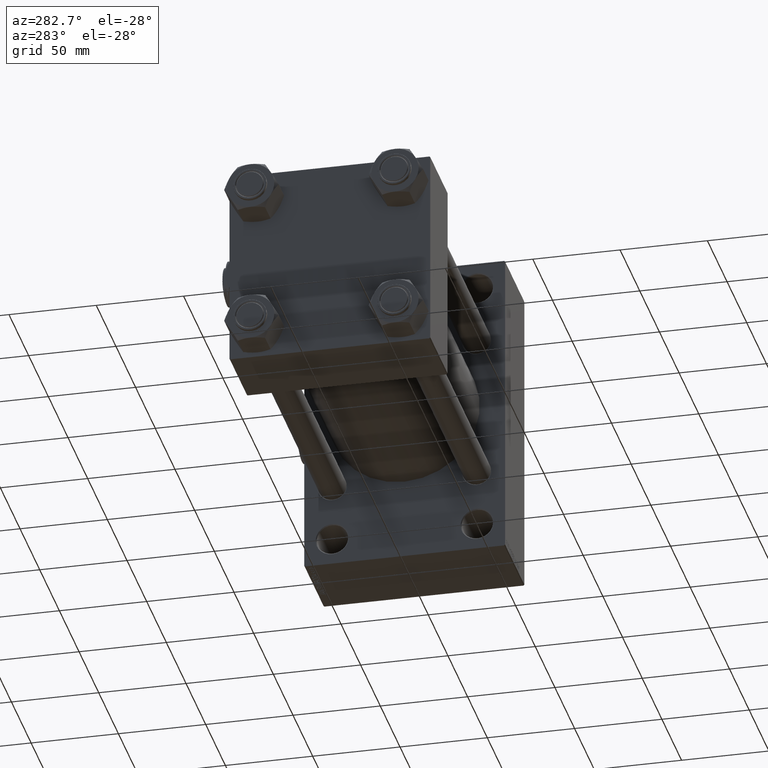
[diagram: clean part render]
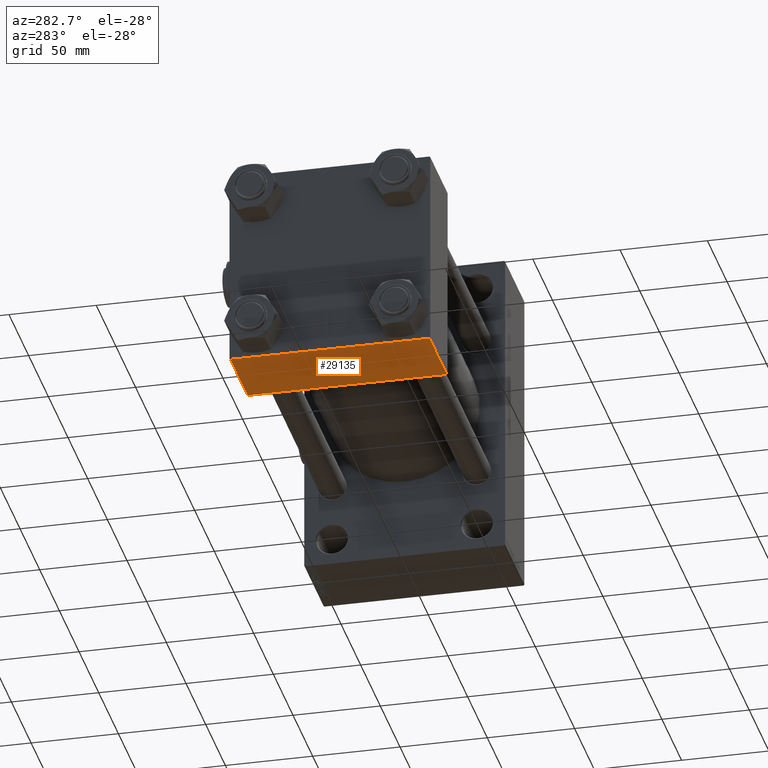
[diagram: same view with one face highlighted and labeled with its STEP entity id]
A machine part, auxiliary view. The second image highlights one B-rep face of the part: STEP entity #29135.
In plain terms, the highlighted planar face has unit normal (0, 0, -1).
Its self-contained STEP definition (entity closure, byte-faithful):
#957 = CARTESIAN_POINT ( 'NONE',  ( 0.000000000000000000, 57.00000000000002132, -57.49999999999999289 ) ) ;
#2847 = DIRECTION ( 'NONE',  ( 1.000000000000000000, 0.000000000000000000, 0.000000000000000000 ) ) ;
#4053 = VERTEX_POINT ( 'NONE', #15774 ) ;
#4736 = AXIS2_PLACEMENT_3D ( 'NONE', #38107, #6828, #22350 ) ;
#5353 = CARTESIAN_POINT ( 'NONE',  ( 44.00000000000000000, -57.00000000000000711, -57.50000000000000711 ) ) ;
#5572 = VERTEX_POINT ( 'NONE', #957 ) ;
#6828 = DIRECTION ( 'NONE',  ( 0.000000000000000000, 1.206764157201257045E-16, -1.000000000000000000 ) ) ;
#7006 = ORIENTED_EDGE ( 'NONE', *, *, #23437, .T. ) ;
#9426 = CARTESIAN_POINT ( 'NONE',  ( 0.000000000000000000, 57.49999999999999289, -57.49999999999999289 ) ) ;
#15774 = CARTESIAN_POINT ( 'NONE',  ( 0.000000000000000000, -57.00000000000000711, -57.50000000000000711 ) ) ;
#15799 = LINE ( 'NONE', #30814, #20125 ) ;
#16655 = VERTEX_POINT ( 'NONE', #49103 ) ;
#16658 = ORIENTED_EDGE ( 'NONE', *, *, #27697, .T. ) ;
#16753 = ORIENTED_EDGE ( 'NONE', *, *, #42790, .T. ) ;
#19744 = VECTOR ( 'NONE', #24941, 1000.000000000000000 ) ;
#20125 = VECTOR ( 'NONE', #31329, 1000.000000000000000 ) ;
#22350 = DIRECTION ( 'NONE',  ( 0.000000000000000000, 1.000000000000000000, 1.206764157201257045E-16 ) ) ;
#23437 = EDGE_CURVE ( 'NONE', #5572, #16655, #29534, .T. ) ;
#24086 = VECTOR ( 'NONE', #2847, 1000.000000000000000 ) ;
#24941 = DIRECTION ( 'NONE',  ( 0.000000000000000000, -1.000000000000000000, -1.206764157201257045E-16 ) ) ;
#25285 = EDGE_LOOP ( 'NONE', ( #34237, #7006, #16753, #16658 ) ) ;
#27308 = LINE ( 'NONE', #32577, #41669 ) ;
#27697 = EDGE_CURVE ( 'NONE', #28905, #4053, #15799, .T. ) ;
#28905 = VERTEX_POINT ( 'NONE', #5353 ) ;
#29135 = ADVANCED_FACE ( 'NONE', ( #34289 ), #30474, .T. ) ;
#29534 = LINE ( 'NONE', #40735, #24086 ) ;
#30474 = PLANE ( 'NONE',  #4736 ) ;
#30814 = CARTESIAN_POINT ( 'NONE',  ( 0.000000000000000000, -57.00000000000000711, -57.50000000000000711 ) ) ;
#31329 = DIRECTION ( 'NONE',  ( -1.000000000000000000, 0.000000000000000000, 0.000000000000000000 ) ) ;
#32577 = CARTESIAN_POINT ( 'NONE',  ( 44.00000000000000000, 57.49999999999999289, -57.49999999999999289 ) ) ;
#34237 = ORIENTED_EDGE ( 'NONE', *, *, #42802, .F. ) ;
#34289 = FACE_OUTER_BOUND ( 'NONE', #25285, .T. ) ;
#38107 = CARTESIAN_POINT ( 'NONE',  ( 44.00000000000000000, 57.49999999999999289, -57.49999999999999289 ) ) ;
#40735 = CARTESIAN_POINT ( 'NONE',  ( 44.00000000000000000, 57.00000000000002132, -57.49999999999999289 ) ) ;
#41669 = VECTOR ( 'NONE', #46649, 1000.000000000000000 ) ;
#42790 = EDGE_CURVE ( 'NONE', #16655, #28905, #27308, .T. ) ;
#42802 = EDGE_CURVE ( 'NONE', #5572, #4053, #47837, .T. ) ;
#46649 = DIRECTION ( 'NONE',  ( 0.000000000000000000, -1.000000000000000000, -1.206764157201257045E-16 ) ) ;
#47837 = LINE ( 'NONE', #9426, #19744 ) ;
#49103 = CARTESIAN_POINT ( 'NONE',  ( 44.00000000000000000, 57.00000000000002132, -57.49999999999999289 ) ) ;